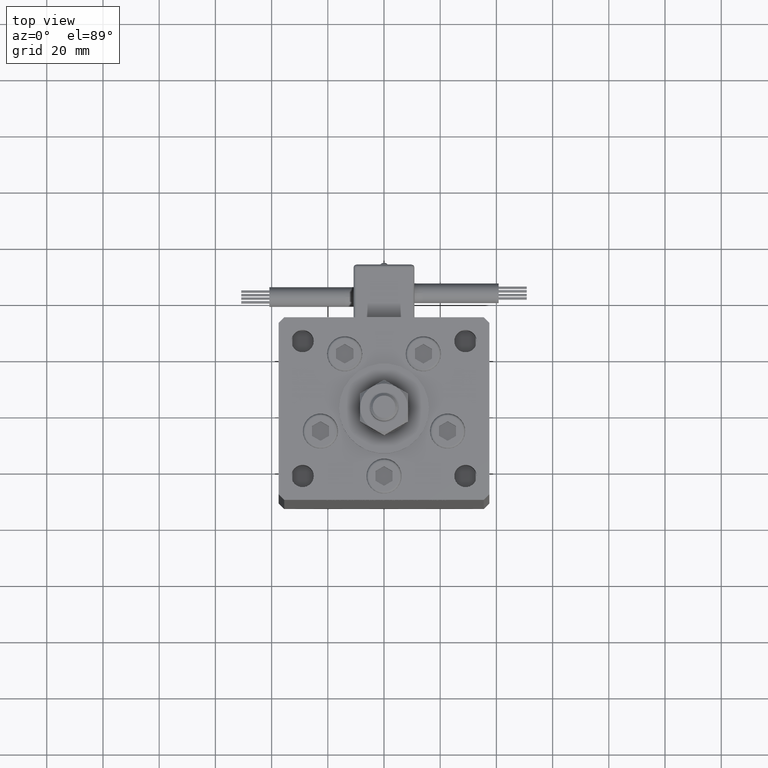
[diagram: clean part render]
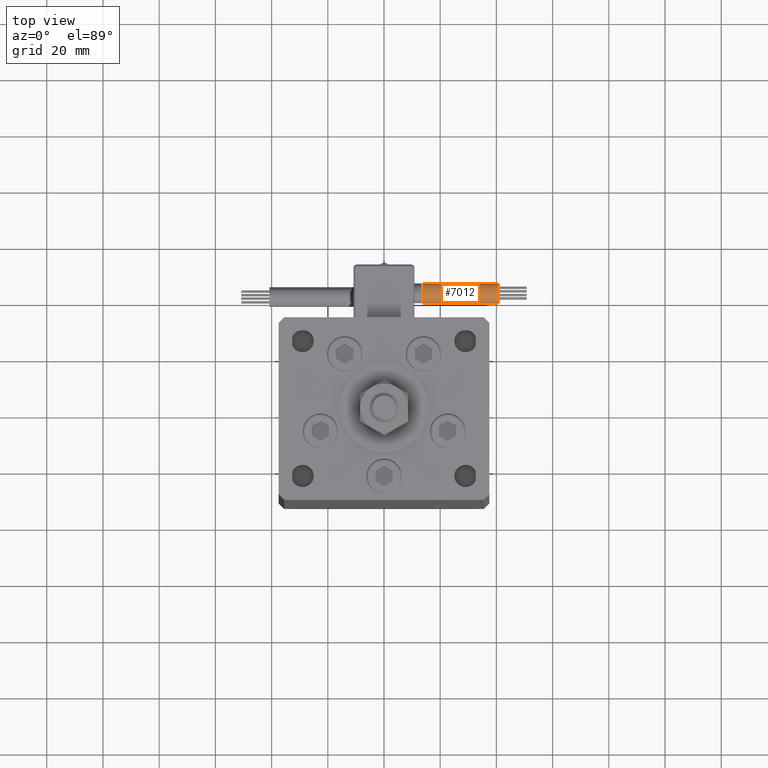
[diagram: same view with one face highlighted and labeled with its STEP entity id]
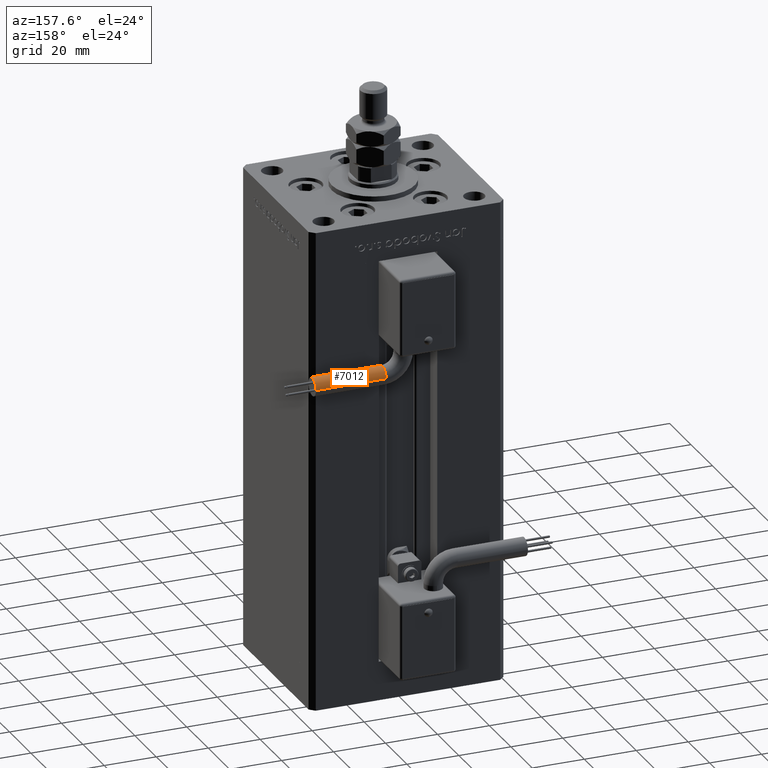
[diagram: same view with one face highlighted and labeled with its STEP entity id]
A machine part, top view. The second image highlights one B-rep face of the part: STEP entity #7012.
A second angle (auxiliary view) of the same face is appended — the face is thin or edge-on in the first view.
In plain terms, the highlighted cylindrical surface (edge-blend (fillet) strip) has radius 3.5 mm, axis along (1, -0, 0).
Its self-contained STEP definition (entity closure, byte-faithful):
#401 = VERTEX_POINT ( 'NONE', #32764 ) ;
#1223 = AXIS2_PLACEMENT_3D ( 'NONE', #1498, #30032, #5253 ) ;
#1498 = CARTESIAN_POINT ( 'NONE',  ( 13.79999999999999893, 42.00000000000000000, -65.00000000000000000 ) ) ;
#2107 = VERTEX_POINT ( 'NONE', #16327 ) ;
#2443 = CIRCLE ( 'NONE', #34541, 3.500000000000003109 ) ;
#3080 = CIRCLE ( 'NONE', #1223, 3.500000000000003109 ) ;
#3237 = ORIENTED_EDGE ( 'NONE', *, *, #19035, .T. ) ;
#3499 = LINE ( 'NONE', #43663, #49665 ) ;
#3574 = DIRECTION ( 'NONE',  ( 1.000000000000000000, -2.599999999999999847E-16, 2.220446049250000002E-16 ) ) ;
#5253 = DIRECTION ( 'NONE',  ( 0.000000000000000000, 0.000000000000000000, -1.000000000000000000 ) ) ;
#7012 = ADVANCED_FACE ( 'NONE', ( #19241 ), #22704, .T. ) ;
#7303 = CARTESIAN_POINT ( 'NONE',  ( 13.80000000000000071, 45.50000000000000711, -65.00000000000000000 ) ) ;
#8814 = AXIS2_PLACEMENT_3D ( 'NONE', #19319, #18628, #35853 ) ;
#10375 = ORIENTED_EDGE ( 'NONE', *, *, #47002, .T. ) ;
#10698 = CARTESIAN_POINT ( 'NONE',  ( 13.79999999999999893, 45.50000000000000711, -65.00000000000000000 ) ) ;
#16327 = CARTESIAN_POINT ( 'NONE',  ( 13.79999999999999893, 38.50000000000000000, -65.00000000000000000 ) ) ;
#16598 = DIRECTION ( 'NONE',  ( 1.000000000000000000, 0.000000000000000000, 2.220446049250000002E-16 ) ) ;
#16681 = ORIENTED_EDGE ( 'NONE', *, *, #36419, .F. ) ;
#18628 = DIRECTION ( 'NONE',  ( 1.000000000000000000, 0.000000000000000000, 2.220446049250000002E-16 ) ) ;
#19035 = EDGE_CURVE ( 'NONE', #2107, #34357, #3499, .T. ) ;
#19241 = FACE_OUTER_BOUND ( 'NONE', #55962, .T. ) ;
#19319 = CARTESIAN_POINT ( 'NONE',  ( 40.80000000000000426, 42.00000000000000000, -65.00000000000000000 ) ) ;
#19527 = CARTESIAN_POINT ( 'NONE',  ( 13.79999999999999893, 42.00000000000000000, -65.00000000000000000 ) ) ;
#20803 = LINE ( 'NONE', #7303, #30905 ) ;
#20911 = CARTESIAN_POINT ( 'NONE',  ( 13.79999999999999893, 42.00000000000000000, -65.00000000000000000 ) ) ;
#21821 = CARTESIAN_POINT ( 'NONE',  ( 40.80000000000000426, 45.50000000000000711, -65.00000000000000000 ) ) ;
#22704 = CYLINDRICAL_SURFACE ( 'NONE', #52485, 3.500000000000003109 ) ;
#23961 = CARTESIAN_POINT ( 'NONE',  ( 40.80000000000000426, 38.50000000000000000, -65.00000000000000000 ) ) ;
#27047 = EDGE_CURVE ( 'NONE', #401, #2107, #3080, .T. ) ;
#30032 = DIRECTION ( 'NONE',  ( 1.000000000000000000, 0.000000000000000000, 2.220446049250000002E-16 ) ) ;
#30905 = VECTOR ( 'NONE', #3574, 1000.000000000000000 ) ;
#32660 = CIRCLE ( 'NONE', #8814, 3.500000000000003109 ) ;
#32736 = DIRECTION ( 'NONE',  ( -4.956352788505158337E-16, -1.000000000000000000, 0.000000000000000000 ) ) ;
#32764 = CARTESIAN_POINT ( 'NONE',  ( 13.79999999999999893, 41.99999999999999289, -61.50000000000000000 ) ) ;
#32803 = ORIENTED_EDGE ( 'NONE', *, *, #39906, .F. ) ;
#34357 = VERTEX_POINT ( 'NONE', #23961 ) ;
#34541 = AXIS2_PLACEMENT_3D ( 'NONE', #20911, #16598, #38409 ) ;
#35853 = DIRECTION ( 'NONE',  ( 0.000000000000000000, 0.000000000000000000, -1.000000000000000000 ) ) ;
#36419 = EDGE_CURVE ( 'NONE', #45287, #42192, #20803, .T. ) ;
#38409 = DIRECTION ( 'NONE',  ( 0.000000000000000000, 0.000000000000000000, -1.000000000000000000 ) ) ;
#39346 = DIRECTION ( 'NONE',  ( 1.000000000000000000, -2.599999999999999847E-16, 2.220446049250000002E-16 ) ) ;
#39906 = EDGE_CURVE ( 'NONE', #42192, #34357, #32660, .T. ) ;
#40193 = DIRECTION ( 'NONE',  ( 1.000000000000000000, -2.599999999999999847E-16, 2.220446049250000002E-16 ) ) ;
#41129 = ORIENTED_EDGE ( 'NONE', *, *, #27047, .T. ) ;
#42192 = VERTEX_POINT ( 'NONE', #21821 ) ;
#43663 = CARTESIAN_POINT ( 'NONE',  ( 13.79999999999999716, 38.50000000000000000, -65.00000000000000000 ) ) ;
#45287 = VERTEX_POINT ( 'NONE', #10698 ) ;
#47002 = EDGE_CURVE ( 'NONE', #45287, #401, #2443, .T. ) ;
#49665 = VECTOR ( 'NONE', #39346, 1000.000000000000000 ) ;
#52485 = AXIS2_PLACEMENT_3D ( 'NONE', #19527, #40193, #32736 ) ;
#55962 = EDGE_LOOP ( 'NONE', ( #16681, #10375, #41129, #3237, #32803 ) ) ;